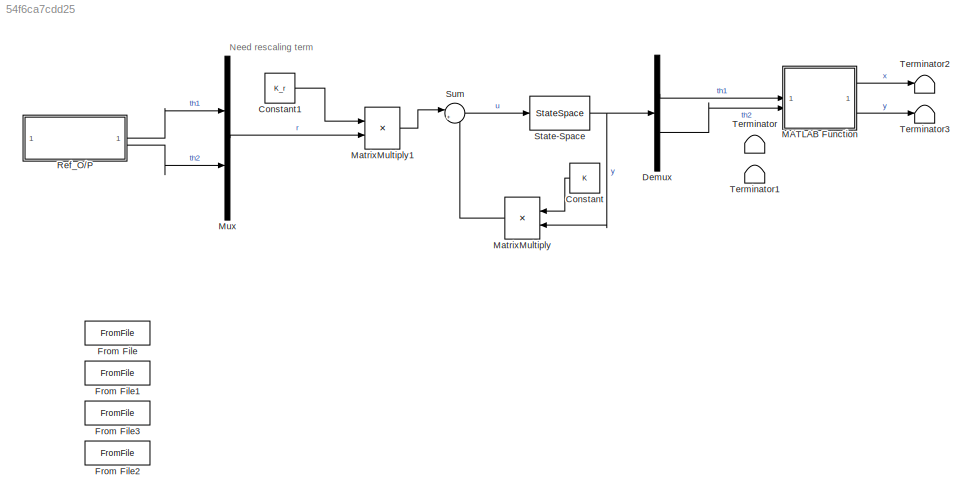
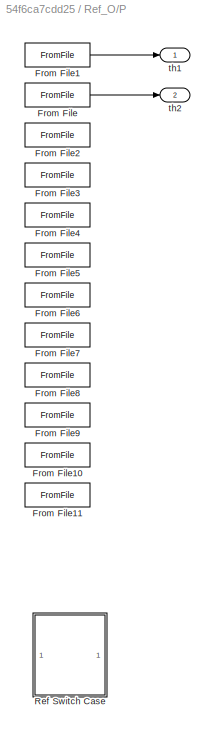
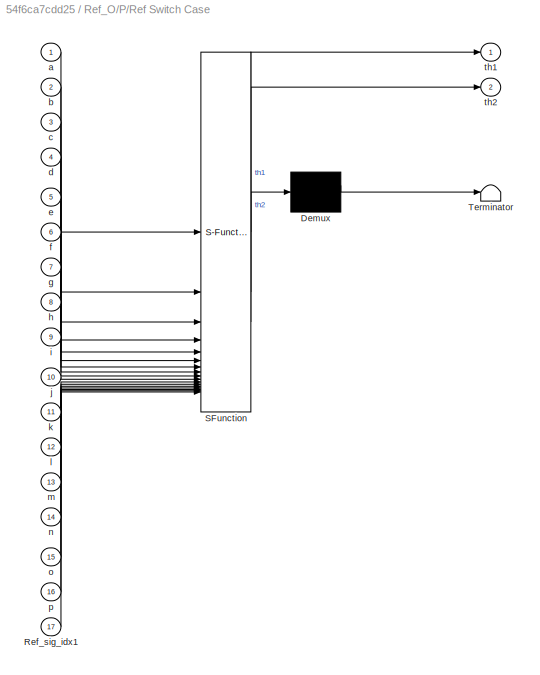
MODEL slx_54f6ca7cdd25
KIND model
CONFIG AbsTol = auto
CONFIG EnableMultiTasking = off
CONFIG FixedStep = 0.02
CONFIG MaxStep = auto
CONFIG MinStep = auto
CONFIG PreLoadFcn = addpath("ref_source\")
CONFIG RelTol = 1e-3
CONFIG SampleTimeConstraint = Unconstrained
CONFIG SolverName = FixedStepAuto
CONFIG StartTime = 0.0
CONFIG StopTime = 20
WORKSPACE source: mxarray member
WORKSPACE Ref_sig_idx = 2
BLOCK [Constant] Constant
  NameLocation = top
  Value = K
BLOCK [Constant] Constant1
  Value = K_r
BLOCK [Demux] Demux
  Outputs = 2
BLOCK [FromFile] From File
  Commented = on
  FileName = ref_th1.mat
  SampleTime = 0
BLOCK [FromFile] From File1
  Commented = on
  FileName = ref_th2.mat
  SampleTime = 0
BLOCK [FromFile] From File2
  Commented = on
  FileName = ref_dth2.mat
  SampleTime = 0
BLOCK [FromFile] From File3
  Commented = on
  FileName = ref_dth1.mat
  SampleTime = 0
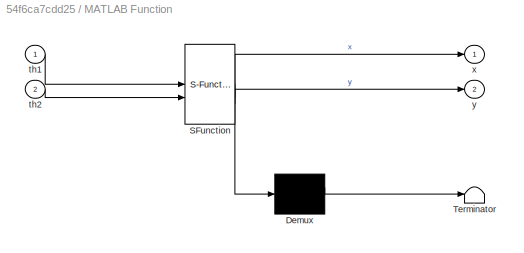
BLOCK [SubSystem] MATLAB Function
  ErrorFcn = Stateflow.Translate.translate
  PermitHierarchicalResolution = ExplicitOnly
  SFBlockType = MATLAB Function
  TreatAsAtomicUnit = on
BLOCK [Demux] MATLAB Function/ Demux 
  Outputs = 1
BLOCK [S-Function] MATLAB Function/ SFunction 
  EnableBusSupport = on
  FunctionName = sf_sfun
  Parameters = L1,L2
  PortCounts = [2 3]
  SFcnIsStateOwnerBlock = off
  SFunctionDeploymentMode = off
  Tag = Stateflow S-Function 2
BLOCK [Terminator] MATLAB Function/ Terminator 
BLOCK [Inport] MATLAB Function/th1
BLOCK [Inport] MATLAB Function/th2
  Port = 2
BLOCK [Outport] MATLAB Function/x
BLOCK [Outport] MATLAB Function/y
  Port = 2
BLOCK [Product] MatrixMultiply
  Multiplication = Matrix(*)
  NameLocation = top
BLOCK [Product] MatrixMultiply1
  Multiplication = Matrix(*)
BLOCK [Mux] Mux
  DisplayOption = bar
  Inputs = 2
BLOCK [SubSystem] Ref_O//P
BLOCK [FromFile] Ref_O//P/From File
  FileName = ref_circ_th2.mat
  SampleTime = 0
BLOCK [FromFile] Ref_O//P/From File1
  FileName = ref_circ_th1.mat
  SampleTime = 0
BLOCK [FromFile] Ref_O//P/From File10
  FileName = ref_tri_bs_th1.mat
  SampleTime = 0
BLOCK [FromFile] Ref_O//P/From File11
  FileName = ref_tri_bs_th2.mat
  SampleTime = 0
BLOCK [FromFile] Ref_O//P/From File2
  FileName = ref_sq_th1.mat
  SampleTime = 0
BLOCK [FromFile] Ref_O//P/From File3
  FileName = ref_sq_th2.mat
  SampleTime = 0
BLOCK [FromFile] Ref_O//P/From File4
  FileName = ref_tri_th1.mat
  SampleTime = 0
BLOCK [FromFile] Ref_O//P/From File5
  FileName = ref_tri_th2.mat
  SampleTime = 0
BLOCK [FromFile] Ref_O//P/From File6
  FileName = ref_circ_bs_th1.mat
  SampleTime = 0
BLOCK [FromFile] Ref_O//P/From File7
  FileName = ref_circ_bs_th2.mat
  SampleTime = 0
BLOCK [FromFile] Ref_O//P/From File8
  FileName = ref_sq_bs_th1.mat
  SampleTime = 0
BLOCK [FromFile] Ref_O//P/From File9
  FileName = ref_sq_bs_th2.mat
  SampleTime = 0
BLOCK [SubSystem] Ref_O//P/Ref Switch Case
  Commented = on
  ErrorFcn = Stateflow.Translate.translate
  PermitHierarchicalResolution = ExplicitOnly
  SFBlockType = MATLAB Function
  TreatAsAtomicUnit = on
BLOCK [Demux] Ref_O//P/Ref Switch Case/ Demux 
  Outputs = 1
BLOCK [S-Function] Ref_O//P/Ref Switch Case/ SFunction 
  EnableBusSupport = on
  FunctionName = sf_sfun
  Parameters = Ref_sig_idx
  PortCounts = [17 3]
  SFcnIsStateOwnerBlock = off
  SFunctionDeploymentMode = off
  Tag = Stateflow S-Function 1
BLOCK [Terminator] Ref_O//P/Ref Switch Case/ Terminator 
BLOCK [Inport] Ref_O//P/Ref Switch Case/Ref_sig_idx1
  Port = 17
BLOCK [Inport] Ref_O//P/Ref Switch Case/a
BLOCK [Inport] Ref_O//P/Ref Switch Case/b
  Port = 2
BLOCK [Inport] Ref_O//P/Ref Switch Case/c
  Port = 3
BLOCK [Inport] Ref_O//P/Ref Switch Case/d
  Port = 4
BLOCK [Inport] Ref_O//P/Ref Switch Case/e
  Port = 5
BLOCK [Inport] Ref_O//P/Ref Switch Case/f
  Port = 6
BLOCK [Inport] Ref_O//P/Ref Switch Case/g
  Port = 7
BLOCK [Inport] Ref_O//P/Ref Switch Case/h
  Port = 8
BLOCK [Inport] Ref_O//P/Ref Switch Case/i
  Port = 9
BLOCK [Inport] Ref_O//P/Ref Switch Case/j
  Port = 10
BLOCK [Inport] Ref_O//P/Ref Switch Case/k
  Port = 11
BLOCK [Inport] Ref_O//P/Ref Switch Case/l
  Port = 12
BLOCK [Inport] Ref_O//P/Ref Switch Case/m
  Port = 13
BLOCK [Inport] Ref_O//P/Ref Switch Case/n
  Port = 14
BLOCK [Inport] Ref_O//P/Ref Switch Case/o
  Port = 15
BLOCK [Inport] Ref_O//P/Ref Switch Case/p
  Port = 16
BLOCK [Outport] Ref_O//P/Ref Switch Case/th1
BLOCK [Outport] Ref_O//P/Ref Switch Case/th2
  Port = 2
BLOCK [Outport] Ref_O//P/th1
BLOCK [Outport] Ref_O//P/th2
  Port = 2
BLOCK [StateSpace] State-Space
  A = A
  B = B
  C = C
  D = D
  InitialCondition = 0
BLOCK [Sum] Sum
  Inputs = |+-
BLOCK [Terminator] Terminator
  Commented = on
BLOCK [Terminator] Terminator1
  Commented = on
BLOCK [Terminator] Terminator2
BLOCK [Terminator] Terminator3
ANNOTATION (root): Need rescaling term
LINE Constant1:1 -> MatrixMultiply1:1
LINE Constant:1 -> MatrixMultiply:1
LINE Demux:1 -> MATLAB Function:1
LINE Demux:2 -> MATLAB Function:2
LINE MATLAB Function:1 -> Terminator2:1
LINE MATLAB Function:2 -> Terminator3:1
LINE MatrixMultiply1:1 -> Sum:1
LINE MatrixMultiply:1 -> Sum:2
LINE Mux:1 -> MatrixMultiply1:2
LINE Ref_O//P/From File1:1 -> Ref_O//P/th1:1
LINE Ref_O//P/From File:1 -> Ref_O//P/th2:1
LINE Ref_O//P:1 -> Mux:1
LINE Ref_O//P:2 -> Mux:2
NET State-Space:1 -> Demux:1, MatrixMultiply:2
LINE Sum:1 -> State-Space:1
note: NET lines group one-source signal fan-out (src -> all destinations, sorted); 1:1 wires keep LINE
CHART Ref_O//P/Ref Switch Case states=1 transitions=1
  STATE_LABEL 'eML_blk_kernel()'
  STATE_LABEL 'SCRIPT:\nfunction [th1, th2] = ref_switch(Ref_sig_idx, a, b, c, d, e, f, g, h, i, j, k, l, m, n, o, p, Ref_sig_idx1)\n    if Ref_sig_idx == 0\n        % circ base\n        th1 = a;\n        th2 = b;\n    elseif Ref_sig_idx == 1\n        % sq base\n        th1 = c;\n        th2 = d;\n    elseif Ref_sig_idx == 2\n        % tri base\n        th1 = e;\n        th2 = f;\n    end\n    if Ref_sig_idx == 3\n        % cir...<+531ch>'
CHART MATLAB Function states=1 transitions=1
  STATE_LABEL 'eML_blk_kernel()'
  STATE_LABEL 'SCRIPT:\nfunction [x,y] = th_to_xy(th1, th2, L1, L2)\n    x = L1*cos(deg2rad(th1)) + L2*cos(deg2rad(th2));\n    y = L1*sin(deg2rad(th1)) + L2*sin(deg2rad(th2));\n'
CHART  states=0 transitions=0
CHART  states=0 transitions=0
